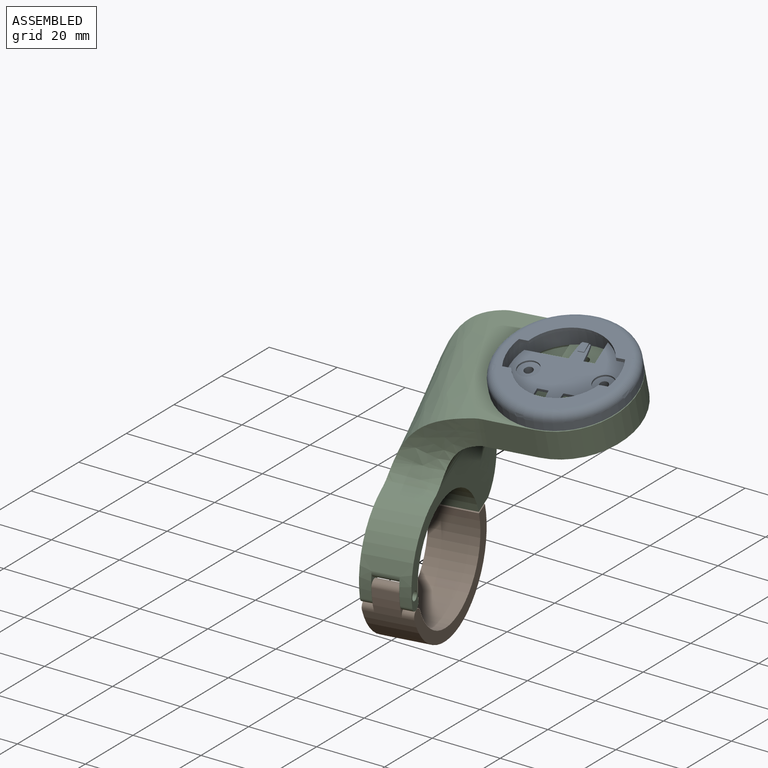
[diagram: assembled view]
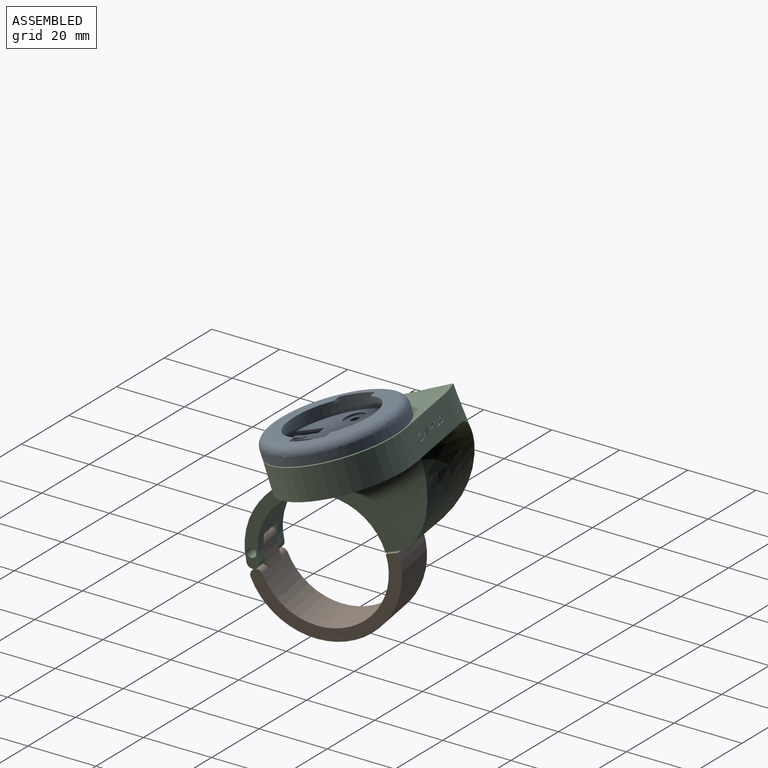
[diagram: assembled view, second angle]
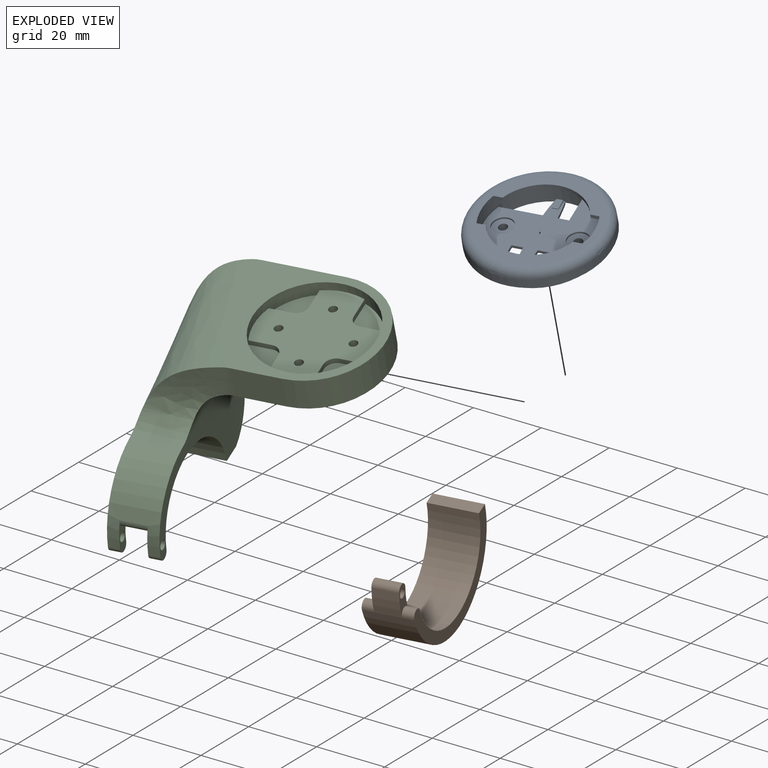
[diagram: exploded view]
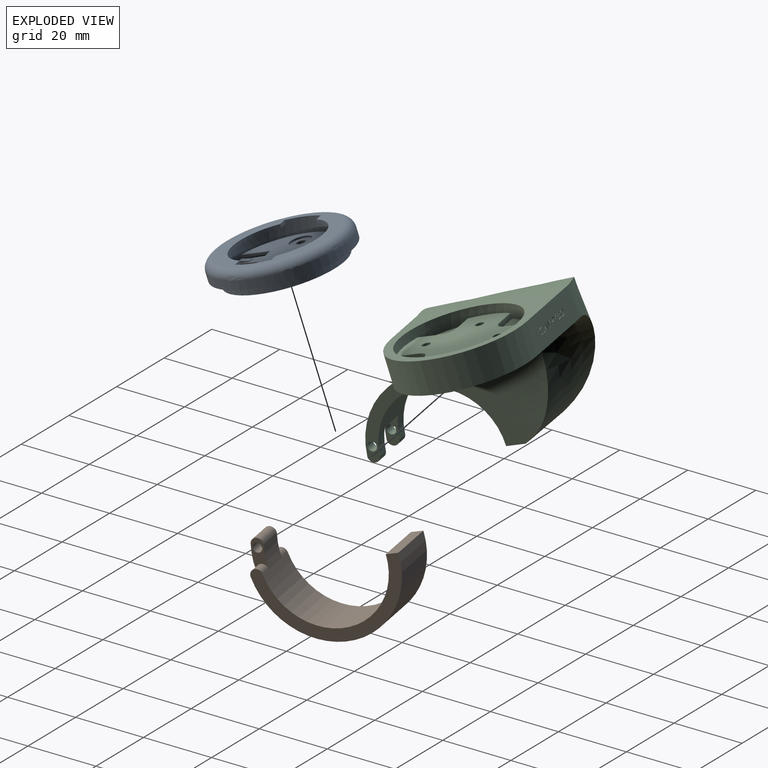
[diagram: exploded view, second angle]
ASSEMBLY  parts=3 mates=2
PART A: 51 faces, bbox 41.1x41.1x7.8 mm
  f0: cylinder r=1.24mm len=2.8mm, axis (0,0,-1), area 21.9mm2, adj f40,f50
  f1: cylinder r=1.24mm len=2.8mm, axis (0,0,-1), area 21.9mm2, adj f38,f48
  f2: cylinder r=15mm len=30mm, axis (0,0,1), area 598.7mm2, adj f4,f5,f6,f7,f8,f13,f14,f19
  f3: cylinder r=12.7mm len=23.28mm, axis (0,0,1), area 29.9mm2, adj f4,f5,f6,f7
  f4: plane 2.47x1.02mm, normal (-1,0,0), area 2.5mm2, adj f2,f3,f6,f7
  f5: plane 2.47x1.02mm, normal (-1,0,0), area 2.5mm2, adj f2,f3,f6,f7
  f6: plane 28.22x9.92mm, normal (0,0,-1), area 76.1mm2, adj f2,f3,f4,f5
  f7: plane 32.92x32.92mm, normal (0,0,1), area 296.5mm2, adj f2,f3,f4,f5,f24,f41,f42,f43
  f8: plane 30x28.28mm, normal (0,0,-1), area 453.7mm2, adj f2,f9,f10,f11,f12,f13,f14,f15
  f9: plane 3.03x0.76mm, normal (-1,0,0), area 2.3mm2, adj f8,f10,f20,f21
  f10: extruded ~6.05x0.76mm, area 4.6mm2, adj f8,f9,f11,f21
  f11: plane 2.51x0.76mm, normal (-1,0,0), area 1.9mm2, adj f8,f10,f12,f21
  f12: extruded ~6.05x0.76mm, area 4.6mm2, adj f8,f11,f13,f21
  f13: plane 11.78x0.76mm, normal (-1,0,0), area 9mm2, adj f2,f8,f12,f21
  f14: plane 8.15x0.76mm, normal (0,1,0), area 6.2mm2, adj f2,f8,f15,f21
  f15: plane 3.03x0.76mm, normal (1,0,0), area 2.3mm2, adj f8,f14,f16,f21
  f16: extruded ~6.05x0.76mm, area 4.6mm2, adj f8,f15,f17,f21
  f17: plane 2.51x0.76mm, normal (1,0,0), area 1.9mm2, adj f8,f16,f18,f21
  f18: extruded ~6.05x0.76mm, area 4.6mm2, adj f8,f17,f19,f21
  f19: plane 11.78x0.76mm, normal (1,0,0), area 9mm2, adj f2,f8,f18,f21
  f20: plane 8.15x0.76mm, normal (0,-1,0), area 6.2mm2, adj f2,f8,f9,f21
  f21: plane 30x28.28mm, normal (0,0,1), area 414.4mm2, adj f2,f9,f10,f11,f12,f13,f14,f15
  f22: plane 38x38mm, normal (0,0,-1), area 303.8mm2, adj f23,f25
  f23: cylinder r=19mm len=38mm, axis (0,0,-1), area 294.1mm2, adj f22,f24
  f24: torus R=16.46mm, axis (0,0,1), area 453.1mm2, adj f7,f23
  f25: cylinder r=16.26mm len=32.51mm, axis (0,0,1), area 259.4mm2, adj f22,f26
  f26: plane 32.51x32.51mm, normal (0,0,-1), area 123.5mm2, adj f2,f25
  f27: plane 1.78x0.17mm, normal (1,0,0), area 0.3mm2, adj f21,f28,f30,f36
  f28: plane 3x0.44mm, normal (0,1,0), area 0.9mm2, adj f21,f27,f29,f36
  f29: plane 1.78x0.44mm, normal (-1,0,0), area 0.8mm2, adj f21,f28,f30,f36
  f30: plane 3x0.44mm, normal (0,-1,0), area 0.9mm2, adj f21,f27,f29,f36
  f31: plane 1.78x0.44mm, normal (1,0,0), area 0.8mm2, adj f21,f32,f34,f35
  f32: plane 3x0.44mm, normal (0,1,0), area 0.9mm2, adj f21,f31,f33,f35
  f33: plane 1.78x0.17mm, normal (-1,0,0), area 0.3mm2, adj f21,f32,f34,f35
  f34: plane 3x0.44mm, normal (0,-1,0), area 0.9mm2, adj f21,f31,f33,f35
  f35: plane 3x1.78mm, normal (-0.09,0,1), area 5.3mm2, adj f31,f32,f33,f34
  f36: plane 3x1.78mm, normal (0.09,0,1), area 5.3mm2, adj f27,f28,f29,f30
  f37: cylinder r=1.91mm len=3.81mm, axis (0,0,1), area 30.4mm2, adj f8,f38
  f38: plane 3.81x3.81mm, normal (0,0,-1), area 6.5mm2, adj f1,f37
  f39: cylinder r=1.91mm len=3.81mm, axis (0,0,1), area 30.4mm2, adj f8,f40
  f40: plane 3.81x3.81mm, normal (0,0,-1), area 6.5mm2, adj f0,f39
  f41: plane 2.47x1.02mm, normal (1,0,0), area 2.5mm2, adj f2,f7,f42,f44
  f42: cylinder r=12.7mm len=23.28mm, axis (0,0,1), area 29.9mm2, adj f7,f41,f43,f44
  f43: plane 2.47x1.02mm, normal (1,0,0), area 2.5mm2, adj f2,f7,f42,f44
  f44: plane 28.22x9.92mm, normal (0,0,-1), area 76.1mm2, adj f2,f41,f42,f43
  f45: cylinder r=1.27mm len=2.79mm, axis (0,0,1), area 22.3mm2, adj f8,f46
  f46: plane 2.54x2.54mm, normal (0,0,-1), area 5.1mm2, adj f45
  f47: cylinder r=3mm len=6mm, axis (0,0,1), area 9.4mm2, adj f21,f48
  f48: plane 6x6mm, normal (0,0,1), area 23.4mm2, adj f1,f47
  f49: cylinder r=3mm len=6mm, axis (0,0,1), area 9.4mm2, adj f21,f50
  f50: plane 6x6mm, normal (0,0,1), area 23.4mm2, adj f0,f49
PART B: 11 faces, bbox 14x42x27.8 mm
  f0: cylinder r=17.5mm len=35mm, axis (-1,0,0), area 793.4mm2, adj f1,f3,f4,f5,f6,f8,f9,f10
  f1: plane 14x3.5mm, normal (0,0,1), area 49mm2, adj f0,f2,f3,f4
  f2: cylinder r=21mm len=42mm, axis (-1,0,0), area 952.1mm2, adj f1,f3,f4,f5,f6,f8,f9,f10
  f3: plane 41.92x21mm, normal (1,0,0), area 210.3mm2, adj f0,f1,f2,f10
  f4: plane 41.92x21mm, normal (-1,0,0), area 210.3mm2, adj f0,f1,f2,f8
  f5: plane 8.69x4.17mm, normal (-1,0,0), area 18.6mm2, adj f0,f2,f7,f8,f9
  f6: plane 8.69x4.17mm, normal (1,0,0), area 18.6mm2, adj f0,f2,f7,f9,f10
  f7: cylinder r=1.3mm len=7.4mm, axis (-1,0,0), area 60.4mm2, adj f5,f6
  f8: cylinder r=1.75mm len=3.49mm, axis (-1,0,0), area 18.1mm2, adj f0,f2,f4,f5
  f9: cylinder r=1.75mm len=7.4mm, axis (-1,0,0), area 40.7mm2, adj f0,f2,f5,f6
  f10: cylinder r=1.75mm len=3.49mm, axis (-1,0,0), area 18.1mm2, adj f0,f2,f3,f6
PART C: 241 faces, bbox 61.5x69.2x41.9 mm
  f0: plane 22.83x9mm, normal (0,-1,0), area 195.6mm2, adj f5,f7,f8,f80,f102,f103,f104,f105
  f1: cylinder r=17.5mm len=34.93mm, axis (-1,0,0), area 697.4mm2, adj f15,f16,f17,f95,f96,f97,f98,f99
  f2: cylinder r=21mm len=19.49mm, axis (-1,0,0), area 354.3mm2, adj f16,f17,f79,f95,f96,f97,f98,f99
  f3: cylinder r=16.5mm len=33mm, axis (0,0,-1), area 207.3mm2, adj f8,f18
  f4: plane 13.87x9mm, normal (0,1,0), area 124.8mm2, adj f5,f7,f8,f81
  f5: cylinder r=19mm len=38mm, axis (0,0,-1), area 537.2mm2, adj f0,f4,f7,f8
  f6: cylinder r=16.5mm len=33mm, axis (0,0,-1), area 343mm2, adj f7,f82,f83,f84,f85,f86,f87,f88
  f7: plane 42.98x38mm, normal (0,0,1), area 452.7mm2, adj f0,f4,f5,f6,f13,f80
  f8: plane 42.99x38mm, normal (0,0,-1), area 452.7mm2, adj f0,f3,f4,f5,f9,f10,f11,f80
  f9: bspline ~23.91x10.49mm, area 181.1mm2, adj f8,f10,f14,f17,f79,f81
  f10: bspline ~30x23.77mm, area 440mm2, adj f8,f9,f11,f17
  f11: bspline ~30x25mm, area 562.5mm2, adj f8,f10,f12,f15,f80
  f12: bspline ~39x34mm, area 709mm2, adj f11,f13,f16,f80
  f13: bspline ~49.41x26.28mm, area 919.8mm2, adj f7,f12,f14,f16,f79,f80,f81
  f14: bspline ~23x18mm, area 249.8mm2, adj f9,f13,f79,f81
  f15: plane 14x5.5mm, normal (0,0,-1), area 77mm2, adj f1,f11,f16,f17
  f16: plane 43.92x21mm, normal (1,0,0), area 247.2mm2, adj f1,f2,f12,f13,f15,f79,f99,f100
  f17: plane 43.92x21mm, normal (-1,0,0), area 247.2mm2, adj f1,f2,f9,f10,f15,f79,f97,f101
  f18: plane 33x33mm, normal (0,0,-1), area 416.2mm2, adj f3,f27,f28,f29,f30,f31,f32,f41
  f19: plane 10x8.66mm, normal (0,0,-1), area 60.4mm2, adj f20,f21,f22,f23,f24,f25,f78
  f20: plane 4.33x3mm, normal (0.5,-0.87,0), area 15mm2, adj f19,f21,f25,f26
  f21: plane 4.33x3mm, normal (-0.5,-0.87,0), area 15mm2, adj f19,f20,f22,f26
  f22: plane 5x3mm, normal (-1,0,0), area 15mm2, adj f19,f21,f23,f26
  f23: plane 4.33x3mm, normal (-0.5,0.87,0), area 15mm2, adj f19,f22,f24,f26
  f24: plane 4.33x3mm, normal (0.5,0.87,0), area 15mm2, adj f19,f23,f25,f26
  f25: plane 5x3mm, normal (1,0,0), area 15mm2, adj f19,f20,f24,f26
  f26: plane 13x11.26mm, normal (0,0,-1), area 44.8mm2, adj f20,f21,f22,f23,f24,f25,f27,f28
  f27: plane 5.63x3.25mm, normal (0.5,-0.87,0), area 13mm2, adj f18,f26,f28,f32
  f28: plane 6.5x2mm, normal (1,0,0), area 13mm2, adj f18,f26,f27,f29
  f29: plane 5.63x3.25mm, normal (0.5,0.87,0), area 13mm2, adj f18,f26,f28,f30
  f30: plane 5.63x3.25mm, normal (-0.5,0.87,0), area 13mm2, adj f18,f26,f29,f31
  f31: plane 6.5x2mm, normal (-1,0,0), area 13mm2, adj f18,f26,f30,f32
  f32: plane 5.63x3.25mm, normal (-0.5,-0.87,0), area 13mm2, adj f18,f26,f27,f31
  f33: plane 10x8.66mm, normal (0,0,-1), area 60.4mm2, adj f34,f35,f36,f37,f38,f39,f77
  f34: plane 4.33x3mm, normal (0.87,0.5,0), area 15mm2, adj f33,f35,f39,f40
  f35: plane 4.33x3mm, normal (0.87,-0.5,0), area 15mm2, adj f33,f34,f36,f40
  f36: plane 5x3mm, normal (0,-1,0), area 15mm2, adj f33,f35,f37,f40
  f37: plane 4.33x3mm, normal (-0.87,-0.5,0), area 15mm2, adj f33,f36,f38,f40
  f38: plane 4.33x3mm, normal (-0.87,0.5,0), area 15mm2, adj f33,f37,f39,f40
  f39: plane 5x3mm, normal (0,1,0), area 15mm2, adj f33,f34,f38,f40
  f40: plane 13x11.26mm, normal (0,0,-1), area 44.8mm2, adj f34,f35,f36,f37,f38,f39,f41,f42
  f41: plane 5.63x3.25mm, normal (0.87,0.5,0), area 13mm2, adj f18,f40,f42,f46
  f42: plane 6.5x2mm, normal (0,1,0), area 13mm2, adj f18,f40,f41,f43
  f43: plane 5.63x3.25mm, normal (-0.87,0.5,0), area 13mm2, adj f18,f40,f42,f44
  f44: plane 5.63x3.25mm, normal (-0.87,-0.5,0), area 13mm2, adj f18,f40,f43,f45
  f45: plane 6.5x2mm, normal (0,-1,0), area 13mm2, adj f18,f40,f44,f46
  f46: plane 5.63x3.25mm, normal (0.87,-0.5,0), area 13mm2, adj f18,f40,f41,f45
  f47: plane 10x8.66mm, normal (0,0,-1), area 60.4mm2, adj f48,f49,f50,f51,f52,f53,f76
  f48: plane 4.33x3mm, normal (-0.5,0.87,0), area 15mm2, adj f47,f49,f53,f54
  f49: plane 4.33x3mm, normal (0.5,0.87,0), area 15mm2, adj f47,f48,f50,f54
  f50: plane 5x3mm, normal (1,0,0), area 15mm2, adj f47,f49,f51,f54
  f51: plane 4.33x3mm, normal (0.5,-0.87,0), area 15mm2, adj f47,f50,f52,f54
  f52: plane 4.33x3mm, normal (-0.5,-0.87,0), area 15mm2, adj f47,f51,f53,f54
  f53: plane 5x3mm, normal (-1,0,0), area 15mm2, adj f47,f48,f52,f54
  f54: plane 13x11.26mm, normal (0,0,-1), area 44.8mm2, adj f48,f49,f50,f51,f52,f53,f55,f56
  f55: plane 5.63x3.25mm, normal (-0.5,0.87,0), area 13mm2, adj f18,f54,f56,f60
  f56: plane 6.5x2mm, normal (-1,0,0), area 13mm2, adj f18,f54,f55,f57
  f57: plane 5.63x3.25mm, normal (-0.5,-0.87,0), area 13mm2, adj f18,f54,f56,f58
  f58: plane 5.63x3.25mm, normal (0.5,-0.87,0), area 13mm2, adj f18,f54,f57,f59
  f59: plane 6.5x2mm, normal (1,0,0), area 13mm2, adj f18,f54,f58,f60
  f60: plane 5.63x3.25mm, normal (0.5,0.87,0), area 13mm2, adj f18,f54,f55,f59
  f61: plane 10x8.66mm, normal (0,0,-1), area 60.4mm2, adj f62,f63,f64,f65,f66,f67,f75
  f62: plane 4.33x3mm, normal (-0.87,-0.5,0), area 15mm2, adj f61,f63,f67,f68
  f63: plane 4.33x3mm, normal (-0.87,0.5,0), area 15mm2, adj f61,f62,f64,f68
  f64: plane 5x3mm, normal (0,1,0), area 15mm2, adj f61,f63,f65,f68
  f65: plane 4.33x3mm, normal (0.87,0.5,0), area 15mm2, adj f61,f64,f66,f68
  f66: plane 4.33x3mm, normal (0.87,-0.5,0), area 15mm2, adj f61,f65,f67,f68
  f67: plane 5x3mm, normal (0,-1,0), area 15mm2, adj f61,f62,f66,f68
  f68: plane 13x11.26mm, normal (0,0,-1), area 44.8mm2, adj f62,f63,f64,f65,f66,f67,f69,f70
  f69: plane 5.63x3.25mm, normal (-0.87,-0.5,0), area 13mm2, adj f18,f68,f70,f74
  f70: plane 6.5x2mm, normal (0,-1,0), area 13mm2, adj f18,f68,f69,f71
  f71: plane 5.63x3.25mm, normal (0.87,-0.5,0), area 13mm2, adj f18,f68,f70,f72
  f72: plane 5.63x3.25mm, normal (0.87,0.5,0), area 13mm2, adj f18,f68,f71,f73
  f73: plane 6.5x2mm, normal (0,1,0), area 13mm2, adj f18,f68,f72,f74
  f74: plane 5.63x3.25mm, normal (-0.87,0.5,0), area 13mm2, adj f18,f68,f69,f73
  f75: cylinder r=1.2mm len=3.46mm, axis (0,0,1), area 26.1mm2, adj f61,f90
  f76: cylinder r=1.2mm len=3.46mm, axis (0,0,1), area 26.1mm2, adj f47,f90
  f77: cylinder r=1.2mm len=3.46mm, axis (0,0,1), area 26.1mm2, adj f33,f90
  f78: cylinder r=1.2mm len=3.46mm, axis (0,0,1), area 26.1mm2, adj f19,f90
  f79: bspline ~19.68x4.42mm, area 57.2mm2, adj f2,f9,f13,f14,f16,f17
  f80: bspline ~13.28x2.67mm, area 22.3mm2, adj f0,f7,f8,f11,f12,f13
  f81: bspline ~12.97x2.43mm, area 19.8mm2, adj f4,f9,f13,f14
  f82: plane 6.37x1.46mm, normal (1,0,0), area 9.3mm2, adj f6,f90,f91,f237
  f83: plane 6.37x1.46mm, normal (0,-1,0), area 9.3mm2, adj f6,f90,f91,f237
  f84: plane 6.37x1.46mm, normal (0,1,0), area 9.3mm2, adj f6,f90,f92,f239
  f85: plane 6.37x1.46mm, normal (1,0,0), area 9.3mm2, adj f6,f90,f92,f239
  f86: plane 6.37x1.46mm, normal (-1,0,0), area 9.3mm2, adj f6,f90,f94,f240
  f87: plane 6.37x1.46mm, normal (0,1,0), area 9.3mm2, adj f6,f90,f94,f240
  f88: plane 6.37x1.46mm, normal (0,-1,0), area 9.3mm2, adj f6,f90,f93,f238
  f89: plane 6.37x1.46mm, normal (-1,0,0), area 9.3mm2, adj f6,f90,f93,f238
  f90: plane 33x33mm, normal (0,0,1), area 619.8mm2, adj f6,f75,f76,f77,f78,f82,f83,f84
  f91: plane 9.37x9.37mm, normal (0,0,1), area 54.3mm2, adj f6,f82,f83,f237
  f92: plane 9.37x9.37mm, normal (0,0,1), area 54.3mm2, adj f6,f84,f85,f239
  f93: plane 9.37x9.37mm, normal (0,0,1), area 54.3mm2, adj f6,f88,f89,f238
  f94: plane 9.37x9.37mm, normal (0,0,1), area 54.3mm2, adj f6,f86,f87,f240
  f95: plane 9.55x5.33mm, normal (1,0,0), area 20.3mm2, adj f1,f2,f97,f98,f101
  f96: plane 9.55x5.33mm, normal (-1,0,0), area 20.3mm2, adj f1,f2,f98,f99,f100
  f97: cylinder r=1.75mm len=3.49mm, axis (-1,0,0), area 17.9mm2, adj f1,f2,f17,f95
  f98: cylinder r=1.75mm len=7.5mm, axis (-1,0,0), area 41.2mm2, adj f1,f2,f95,f96
  f99: cylinder r=1.75mm len=3.49mm, axis (-1,0,0), area 17.9mm2, adj f1,f2,f16,f96
  f100: cylinder r=1.3mm len=3.25mm, axis (1,0,0), area 26.5mm2, adj f16,f96
  f101: cylinder r=1.3mm len=3.25mm, axis (1,0,0), area 26.5mm2, adj f17,f95
  f102: plane 1.72x0.5mm, normal (1,0,0), area 0.9mm2, adj f0,f103,f105,f106
  f103: plane 0.5x0.2mm, normal (0,0,1), area 0.1mm2, adj f0,f102,f104,f106
  f104: plane 1.72x0.5mm, normal (-1,0,0), area 0.9mm2, adj f0,f103,f105,f106
  f105: plane 0.5x0.2mm, normal (0,0,-1), area 0.1mm2, adj f0,f102,f104,f106
  f106: plane 1.72x0.2mm, normal (0,-1,0), area 0.3mm2, adj f102,f103,f104,f105
  f107: extruded ~0.53x0.5mm, area 0.3mm2, adj f108,f122,f123,f233
  f108: extruded ~0.53x0.5mm, area 0.3mm2, adj f107,f109,f123,f233
  f109: extruded ~0.5x0.44mm, area 0.2mm2, adj f108,f110,f123,f233
  f110: extruded ~0.5x0.43mm, area 0.2mm2, adj f109,f111,f123,f233
  f111: extruded ~0.53x0.5mm, area 0.3mm2, adj f110,f112,f123,f233
  f112: extruded ~0.53x0.5mm, area 0.3mm2, adj f111,f113,f123,f233
  f113: extruded ~0.5x0.43mm, area 0.2mm2, adj f112,f122,f123,f233
  f114: extruded ~0.65x0.5mm, area 0.3mm2, adj f0,f115,f121,f123
  f115: extruded ~0.65x0.5mm, area 0.3mm2, adj f0,f114,f116,f123
  f116: extruded ~0.58x0.5mm, area 0.3mm2, adj f0,f115,f117,f123
  f117: extruded ~0.59x0.5mm, area 0.3mm2, adj f0,f116,f118,f123
  f118: extruded ~0.65x0.5mm, area 0.4mm2, adj f0,f117,f119,f123
  f119: extruded ~0.66x0.5mm, area 0.4mm2, adj f0,f118,f120,f123
  f120: extruded ~0.59x0.5mm, area 0.3mm2, adj f0,f119,f121,f123
  f121: extruded ~0.58x0.5mm, area 0.3mm2, adj f0,f114,f120,f123
  f122: extruded ~0.5x0.43mm, area 0.2mm2, adj f107,f113,f123,f233
  f123: plane 1.77x1.59mm, normal (0,-1,0), area 0.9mm2, adj f107,f108,f109,f110,f111,f112,f113,f114
  f124: plane 0.65x0.5mm, normal (-1,0,0), area 0.3mm2, adj f125,f148,f149,f234
  f125: plane 0.5x0.34mm, normal (0,0,1), area 0.2mm2, adj f124,f126,f149,f234
  f126: extruded ~0.5x0.33mm, area 0.2mm2, adj f125,f127,f149,f234
  f127: extruded ~0.5x0.24mm, area 0.1mm2, adj f126,f128,f149,f234
  f128: extruded ~0.5x0.25mm, area 0.1mm2, adj f127,f129,f149,f234
  f129: extruded ~0.5x0.31mm, area 0.2mm2, adj f128,f148,f149,f234
  f130: plane 0.5x0.33mm, normal (0,0,-1), area 0.2mm2, adj f131,f146,f149,f150
  f131: plane 0.56x0.5mm, normal (-1,0,0), area 0.3mm2, adj f130,f132,f149,f150
  f132: plane 0.5x0.3mm, normal (0,0,1), area 0.1mm2, adj f131,f133,f149,f150
  f133: extruded ~0.5x0.33mm, area 0.2mm2, adj f132,f134,f149,f150
  f134: extruded ~0.5x0.21mm, area 0.1mm2, adj f133,f135,f149,f150
  f135: extruded ~0.5x0.22mm, area 0.1mm2, adj f134,f146,f149,f150
  f136: plane 0.5x0.49mm, normal (0,0,-1), area 0.2mm2, adj f0,f137,f147,f149
  f137: plane 1.72x0.5mm, normal (1,0,0), area 0.9mm2, adj f0,f136,f138,f149
  f138: plane 0.6x0.5mm, normal (0,0,1), area 0.3mm2, adj f0,f137,f139,f149
  f139: extruded ~0.5x0.44mm, area 0.2mm2, adj f0,f138,f140,f149
  f140: extruded ~0.5x0.36mm, area 0.2mm2, adj f0,f139,f141,f149
  f141: extruded ~0.5x0.41mm, area 0.3mm2, adj f0,f140,f142,f149
  f142: plane 0.5x0.01mm, normal (-1,0,0), area 0mm2, adj f0,f141,f143,f149
  f143: extruded ~0.5x0.25mm, area 0.1mm2, adj f0,f142,f144,f149
  f144: extruded ~0.5x0.25mm, area 0.1mm2, adj f0,f143,f145,f149
  f145: extruded ~0.5x0.32mm, area 0.2mm2, adj f0,f144,f147,f149
  f146: extruded ~0.5x0.31mm, area 0.2mm2, adj f130,f135,f149,f150
  f147: extruded ~0.5x0.5mm, area 0.3mm2, adj f0,f136,f145,f149
  f148: plane 0.5x0.36mm, normal (0,0,-1), area 0.2mm2, adj f124,f129,f149,f234
  f149: plane 1.72x1.19mm, normal (0,-1,0), area 1mm2, adj f124,f125,f126,f127,f128,f129,f130,f131
  f150: plane 0.73x0.56mm, normal (0,-1,0), area 0.4mm2, adj f130,f131,f132,f133,f134,f135,f146
  f151: plane 0.86x0.5mm, normal (0.88,0,-0.47), area 0.5mm2, adj f0,f152,f159,f160
  f152: plane 0.86x0.5mm, normal (-0.88,0,-0.47), area 0.5mm2, adj f0,f151,f153,f160
  f153: plane 0.5x0.22mm, normal (0,0,-1), area 0.1mm2, adj f0,f152,f154,f160
  f154: plane 1.06x0.57mm, normal (0.88,0,0.47), area 0.6mm2, adj f0,f153,f155,f160
  f155: plane 0.66x0.5mm, normal (1,0,0), area 0.3mm2, adj f0,f154,f156,f160
  f156: plane 0.5x0.2mm, normal (0,0,1), area 0.1mm2, adj f0,f155,f157,f160
  f157: plane 0.67x0.5mm, normal (-1,0,0), area 0.3mm2, adj f0,f156,f158,f160
  f158: plane 1.06x0.58mm, normal (-0.88,0,0.48), area 0.6mm2, adj f0,f157,f159,f160
  f159: plane 0.5x0.22mm, normal (0,0,-1), area 0.1mm2, adj f0,f151,f158,f160
  f160: plane 1.72x1.35mm, normal (0,-1,0), area 0.6mm2, adj f151,f152,f153,f154,f155,f156,f157,f158
  f161: plane 0.5x0.18mm, normal (0,0,-1), area 0.1mm2, adj f162,f175,f176,f235
  f162: plane 0.7x0.5mm, normal (-1,0,0), area 0.4mm2, adj f161,f163,f176,f235
  f163: plane 0.5x0.22mm, normal (0,0,1), area 0.1mm2, adj f162,f164,f176,f235
  f164: extruded ~0.5x0.35mm, area 0.2mm2, adj f163,f165,f176,f235
  f165: extruded ~0.5x0.25mm, area 0.1mm2, adj f164,f166,f176,f235
  f166: extruded ~0.5x0.28mm, area 0.2mm2, adj f165,f175,f176,f235
  f167: extruded ~0.5x0.4mm, area 0.2mm2, adj f0,f168,f174,f176
  f168: extruded ~0.65x0.5mm, area 0.5mm2, adj f0,f167,f169,f176
  f169: plane 0.5x0.45mm, normal (0,0,-1), area 0.2mm2, adj f0,f168,f170,f176
  f170: plane 1.72x0.5mm, normal (1,0,0), area 0.9mm2, adj f0,f169,f171,f176
  f171: plane 0.5x0.2mm, normal (0,0,1), area 0.1mm2, adj f0,f170,f172,f176
  f172: plane 0.68x0.5mm, normal (-1,0,0), area 0.3mm2, adj f0,f171,f173,f176
  f173: plane 0.5x0.2mm, normal (0,0,1), area 0.1mm2, adj f0,f172,f174,f176
  f174: extruded ~0.51x0.5mm, area 0.3mm2, adj f0,f167,f173,f176
  f175: extruded ~0.5x0.39mm, area 0.2mm2, adj f161,f166,f176,f235
  f176: plane 1.72x1.09mm, normal (0,-1,0), area 0.7mm2, adj f161,f162,f163,f164,f165,f166,f167,f168
  f177: plane 1.53x0.58mm, normal (0.93,0,0.36), area 0.8mm2, adj f0,f178,f194,f195
  f178: plane 0.5x0.16mm, normal (0,0,1), area 0.1mm2, adj f0,f177,f179,f195
  f179: plane 1.53x0.59mm, normal (-0.93,0,0.36), area 0.8mm2, adj f0,f178,f180,f195
  f180: plane 0.5x0.01mm, normal (0,0,1), area 0mm2, adj f0,f179,f181,f195
  f181: extruded ~0.5x0.42mm, area 0.2mm2, adj f0,f180,f182,f195
  f182: plane 1.11x0.5mm, normal (1,0,0), area 0.6mm2, adj f0,f181,f183,f195
  f183: plane 0.5x0.2mm, normal (0,0,1), area 0.1mm2, adj f0,f182,f184,f195
  f184: plane 1.72x0.5mm, normal (-1,0,0), area 0.9mm2, adj f0,f183,f185,f195
  f185: plane 0.5x0.3mm, normal (0,0,-1), area 0.1mm2, adj f0,f184,f186,f195
  f186: plane 1.42x0.55mm, normal (0.93,0,-0.36), area 0.8mm2, adj f0,f185,f187,f195
  f187: plane 0.5x0.01mm, normal (0,0,-1), area 0mm2, adj f0,f186,f188,f195
  f188: plane 1.42x0.55mm, normal (-0.93,0,-0.36), area 0.8mm2, adj f0,f187,f189,f195
  f189: plane 0.5x0.3mm, normal (0,0,-1), area 0.2mm2, adj f0,f188,f190,f195
  f190: plane 1.72x0.5mm, normal (1,0,0), area 0.9mm2, adj f0,f189,f191,f195
  f191: plane 0.5x0.19mm, normal (0,0,1), area 0.1mm2, adj f0,f190,f192,f195
  f192: plane 1.1x0.5mm, normal (-1,0,0), area 0.5mm2, adj f0,f191,f193,f195
  f193: extruded ~0.5x0.43mm, area 0.2mm2, adj f0,f192,f194,f195
  f194: plane 0.5x0.01mm, normal (0,0,1), area 0mm2, adj f0,f177,f193,f195
  f195: plane 1.72x1.71mm, normal (0,-1,0), area 1.3mm2, adj f177,f178,f179,f180,f181,f182,f183,f184
  f196: plane 0.53x0.5mm, normal (0.94,0,0.35), area 0.3mm2, adj f197,f208,f209,f236
  f197: plane 0.56x0.5mm, normal (0,0,-1), area 0.3mm2, adj f196,f198,f209,f236
  f198: plane 0.53x0.5mm, normal (-0.94,0,0.35), area 0.3mm2, adj f197,f199,f209,f236
  f199: extruded ~0.5x0.25mm, area 0.1mm2, adj f198,f208,f209,f236
  f200: plane 0.55x0.5mm, normal (0.93,0,0.36), area 0.3mm2, adj f0,f201,f207,f209
  f201: plane 0.5x0.21mm, normal (0,0,1), area 0.1mm2, adj f0,f200,f202,f209
  f202: plane 1.73x0.68mm, normal (-0.93,0,-0.36), area 0.9mm2, adj f0,f201,f203,f209
  f203: plane 0.5x0.17mm, normal (0,0,-1), area 0.1mm2, adj f0,f202,f204,f209
  f204: plane 1.73x0.68mm, normal (0.93,0,-0.37), area 0.9mm2, adj f0,f203,f205,f209
  f205: plane 0.5x0.2mm, normal (0,0,1), area 0.1mm2, adj f0,f204,f206,f209
  f206: plane 0.55x0.5mm, normal (-0.93,0,0.36), area 0.3mm2, adj f0,f205,f207,f209
  f207: plane 0.69x0.5mm, normal (0,0,1), area 0.3mm2, adj f0,f200,f206,f209
  f208: extruded ~0.5x0.25mm, area 0.1mm2, adj f196,f199,f209,f236
  f209: plane 1.73x1.53mm, normal (0,-1,0), area 0.8mm2, adj f196,f197,f198,f199,f200,f201,f202,f203
  f210: plane 1.72x0.5mm, normal (1,0,0), area 0.9mm2, adj f0,f211,f215,f216
  f211: plane 0.96x0.5mm, normal (0,0,1), area 0.5mm2, adj f0,f210,f212,f216
  f212: plane 0.5x0.18mm, normal (-1,0,0), area 0.1mm2, adj f0,f211,f213,f216
  f213: plane 0.76x0.5mm, normal (0,0,-1), area 0.4mm2, adj f0,f212,f214,f216
  f214: plane 1.54x0.5mm, normal (-1,0,0), area 0.8mm2, adj f0,f213,f215,f216
  f215: plane 0.5x0.2mm, normal (0,0,-1), area 0.1mm2, adj f0,f210,f214,f216
  f216: plane 1.72x0.96mm, normal (0,-1,0), area 0.5mm2, adj f210,f211,f212,f213,f214,f215
  f217: extruded ~0.5x0.45mm, area 0.3mm2, adj f0,f218,f231,f232
  f218: extruded ~0.5x0.39mm, area 0.2mm2, adj f0,f217,f219,f232
  f219: plane 0.5x0.17mm, normal (-0.9,0,0.44), area 0.1mm2, adj f0,f218,f220,f232
  f220: extruded ~0.5x0.47mm, area 0.2mm2, adj f0,f219,f221,f232
  f221: extruded ~0.5x0.44mm, area 0.2mm2, adj f0,f220,f222,f232
  f222: extruded ~0.5x0.31mm, area 0.2mm2, adj f0,f221,f223,f232
  f223: extruded ~0.5x0.47mm, area 0.2mm2, adj f0,f222,f224,f232
  f224: extruded ~0.66x0.5mm, area 0.4mm2, adj f0,f223,f225,f232
  f225: extruded ~0.59x0.5mm, area 0.3mm2, adj f0,f224,f226,f232
  f226: extruded ~0.5x0.44mm, area 0.2mm2, adj f0,f225,f227,f232
  f227: plane 0.5x0.18mm, normal (-1,0,0), area 0.1mm2, adj f0,f226,f228,f232
  f228: extruded ~0.5x0.41mm, area 0.2mm2, adj f0,f227,f229,f232
  f229: extruded ~0.5x0.45mm, area 0.3mm2, adj f0,f228,f230,f232
  f230: extruded ~0.52x0.5mm, area 0.3mm2, adj f0,f229,f231,f232
  f231: extruded ~0.52x0.5mm, area 0.3mm2, adj f0,f217,f230,f232
  f232: plane 1.77x1.3mm, normal (0,-1,0), area 0.6mm2, adj f217,f218,f219,f220,f221,f222,f223,f224
  f233: plane 1.42x1.16mm, normal (0,-1,0), area 1.4mm2, adj f107,f108,f109,f110,f111,f112,f113,f122
  f234: plane 0.78x0.65mm, normal (0,-1,0), area 0.5mm2, adj f124,f125,f126,f127,f128,f129,f148
  f235: plane 0.7x0.69mm, normal (0,-1,0), area 0.4mm2, adj f161,f162,f163,f164,f165,f166,f175
  f236: plane 0.78x0.56mm, normal (0,-1,0), area 0.2mm2, adj f196,f197,f198,f199,f208
  f237: cylinder r=3mm len=3mm, axis (0,0,1), area 6.9mm2, adj f82,f83,f90,f91
  f238: cylinder r=3mm len=3mm, axis (0,0,-1), area 6.9mm2, adj f88,f89,f90,f93
  f239: cylinder r=3mm len=3mm, axis (0,0,-1), area 6.9mm2, adj f84,f85,f90,f92
  f240: cylinder r=3mm len=3mm, axis (0,0,1), area 6.9mm2, adj f86,f87,f90,f94
PLACE A rot(axis=(0.16,0.18,-0.97),81.6deg) t=(34.01,-55.08,-23.43)mm
PLACE B rot(axis=(-0.01,0.15,-0.99),170.7deg) t=(12.85,-74.16,-69.97)mm
PLACE C rot(axis=(-0.01,0.16,-0.99),170.7deg) t=(33.54,-52.25,-32.23)mm fixed
MATE revolute C.f100 <-> B.f7  axis (-0.99,-0.16,0) through (2.18,-95.37,-71.61)mm
MATE revolute C.f3 <-> A.f45  axis (0.05,-0.31,0.95) through (33.74,-53.47,-28.43)mm
